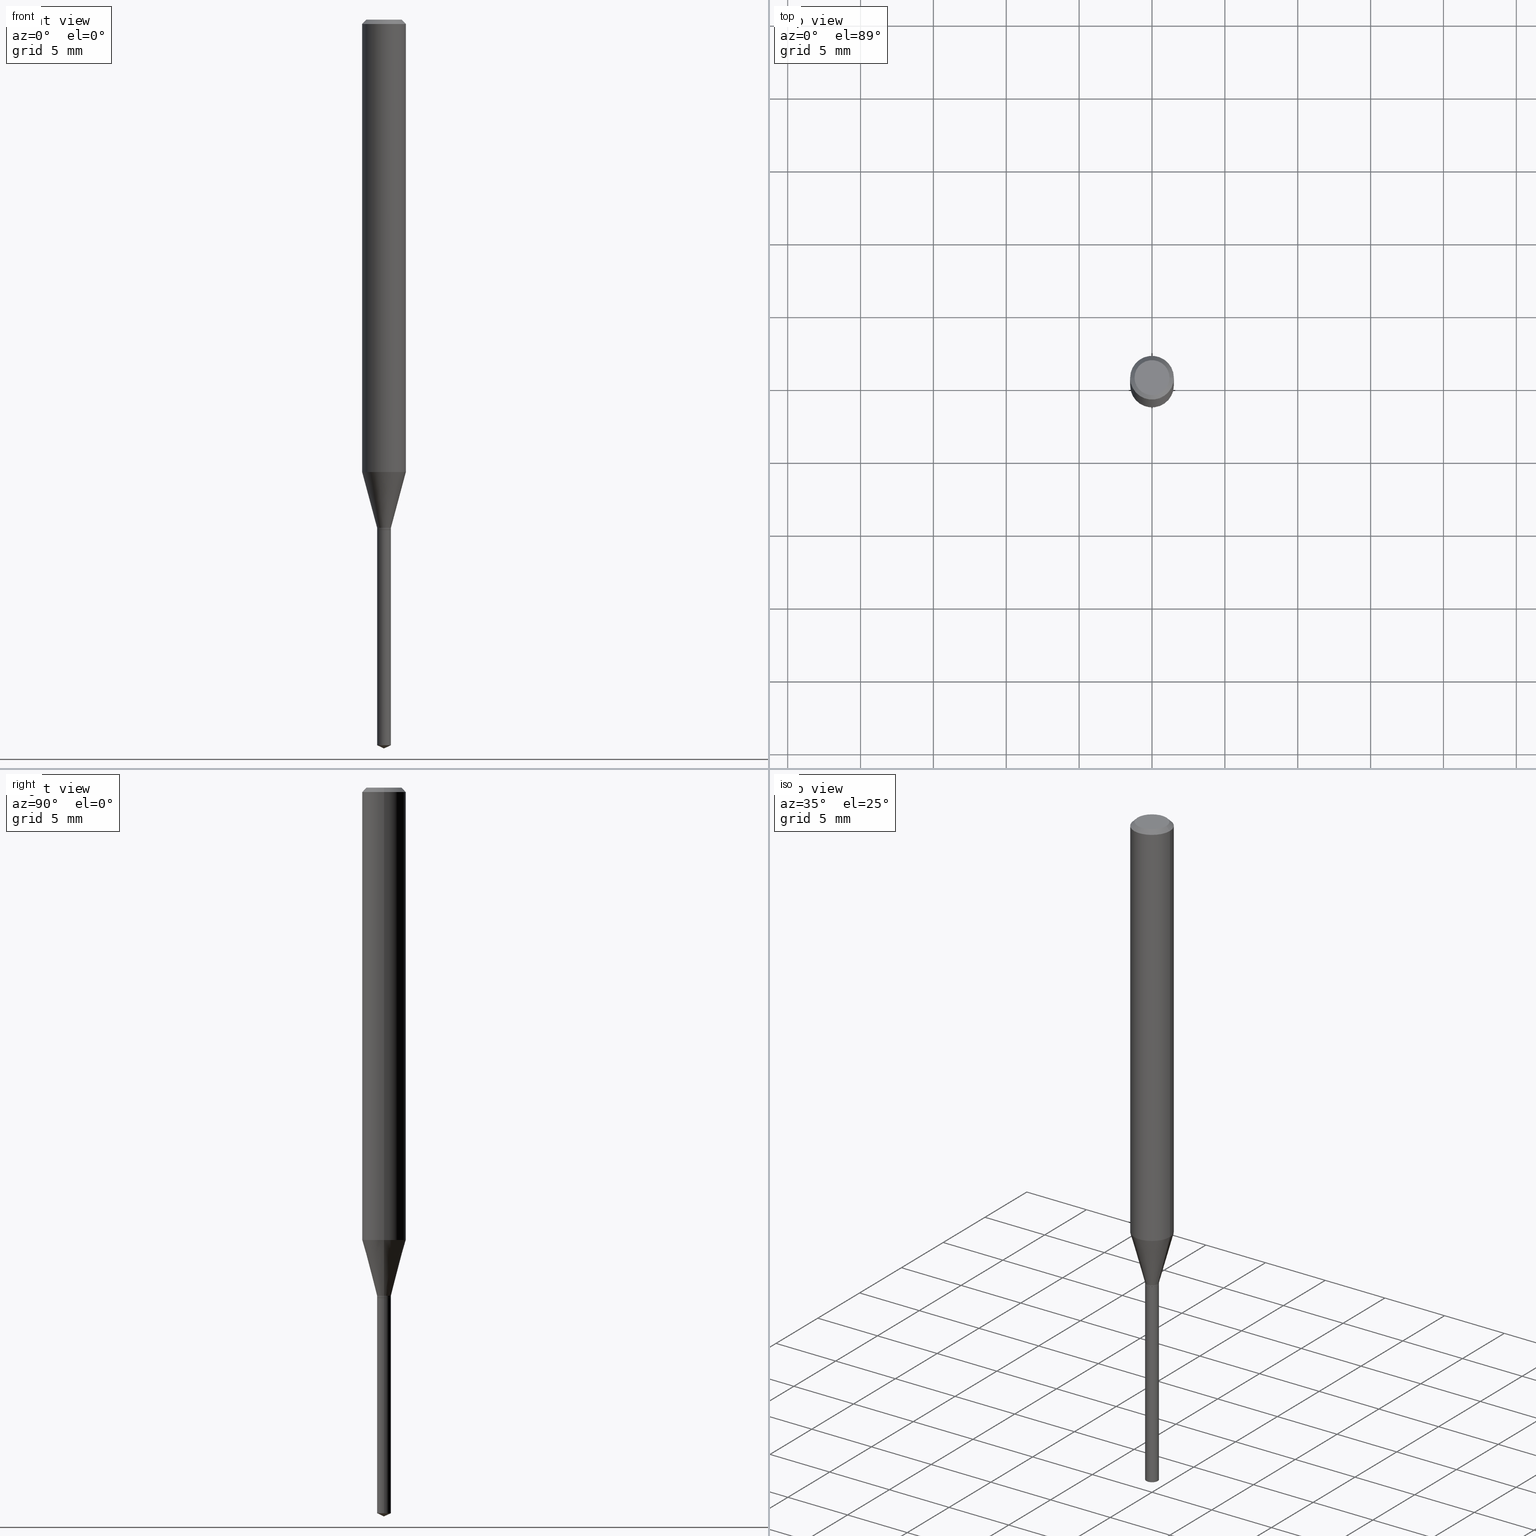
[diagram: canonical four-view strip — front | top / right | iso, engineering-drawing reading convention]
A machine part, canonical four-view strip (front | top / right | iso — engineering-drawing reading convention). The complete STEP part file that produces these views, byte-faithful:
ISO-10303-21;
HEADER;
FILE_DESCRIPTION (( 'STEP AP203' ),
    '1' );
FILE_NAME ('08324.STEP',
    '2024-04-24T14:20:11',
    ( '' ),
    ( '' ),
    'SwSTEP 2.0',
    'SolidWorks 2023',
    '' );
FILE_SCHEMA (( 'CONFIG_CONTROL_DESIGN' ));
ENDSEC;

DATA;
#1 =( NAMED_UNIT ( * ) PLANE_ANGLE_UNIT ( ) SI_UNIT ( $, .RADIAN. ) );
#2 = CIRCLE ( 'NONE', #483, 0.01870000000000003604 ) ;
#3 = LOCAL_TIME ( 10, 20, 11.00000000000000000, #231 ) ;
#4 = DIRECTION ( 'NONE',  ( -1.000000000000000000, 6.982962677686265922E-15, -4.876176775795935793E-29 ) ) ;
#5 = FACE_OUTER_BOUND ( 'NONE', #319, .T. ) ;
#6 = DIRECTION ( 'NONE',  ( 1.000000000000000000, -6.982962677686246989E-15, 0.000000000000000000 ) ) ;
#7 = ADVANCED_FACE ( 'NONE', ( #211 ), #423, .T. ) ;
#8 = ORIENTED_EDGE ( 'NONE', *, *, #476, .F. ) ;
#9 = CARTESIAN_POINT ( 'NONE',  ( -0.05905000000000000526, -1.734706470310346542E-15, -0.01181000000000007738 ) ) ;
#10 = PLANE ( 'NONE',  #338 ) ;
#11 = VERTEX_POINT ( 'NONE', #353 ) ;
#12 = LINE ( 'NONE', #169, #199 ) ;
#13 = AXIS2_PLACEMENT_3D ( 'NONE', #19, #458, #127 ) ;
#14 = AXIS2_PLACEMENT_3D ( 'NONE', #136, #23, #431 ) ;
#15 = CARTESIAN_POINT ( 'NONE',  ( 0.01870000000000003604, -4.941493538864706006E-15, -1.377900000000000569 ) ) ;
#16 = AXIS2_PLACEMENT_3D ( 'NONE', #273, #459, #270 ) ;
#17 = VERTEX_POINT ( 'NONE', #203 ) ;
#18 = EDGE_CURVE ( 'NONE', #92, #303, #12, .T. ) ;
#19 = CARTESIAN_POINT ( 'NONE',  ( 3.370834202445593086E-29, -4.812657877461392732E-15, -1.378400000000000292 ) ) ;
#20 = DATE_AND_TIME ( #58, #425 ) ;
#21 = ORIENTED_EDGE ( 'NONE', *, *, #222, .T. ) ;
#22 = CARTESIAN_POINT ( 'NONE',  ( -0.04724000000000000421, 3.504923541997677355E-16, -3.380025165670481712E-19 ) ) ;
#23 = DIRECTION ( 'NONE',  ( -2.445468806185136597E-29, 3.491481338843145583E-15, 1.000000000000000000 ) ) ;
#24 = VERTEX_POINT ( 'NONE', #272 ) ;
#25 = DIRECTION ( 'NONE',  ( -2.445468806185136597E-29, 3.491481338843145583E-15, 1.000000000000000000 ) ) ;
#26 = APPROVAL_DATE_TIME ( #20, #117 ) ;
#27 = CIRCLE ( 'NONE', #287, 0.01870000000000000134 ) ;
#28 = AXIS2_PLACEMENT_3D ( 'NONE', #43, #339, #488 ) ;
#29 = ORIENTED_EDGE ( 'NONE', *, *, #103, .F. ) ;
#30 = ADVANCED_FACE ( 'NONE', ( #317 ), #314, .T. ) ;
#31 = LINE ( 'NONE', #38, #74 ) ;
#32 = DIRECTION ( 'NONE',  ( -2.445468806185136597E-29, 3.491481338843145583E-15, 1.000000000000000000 ) ) ;
#33 = ORIENTED_EDGE ( 'NONE', *, *, #254, .T. ) ;
#34 = DIRECTION ( 'NONE',  ( -2.445468806185136597E-29, 3.491481338843145583E-15, 1.000000000000000000 ) ) ;
#35 = CONICAL_SURFACE ( 'NONE', #253, 0.01820000000000000090, 0.7853981633978559529 ) ;
#36 = AXIS2_PLACEMENT_3D ( 'NONE', #449, #413, #377 ) ;
#37 = EDGE_CURVE ( 'NONE', #262, #469, #430, .T. ) ;
#38 = CARTESIAN_POINT ( 'NONE',  ( 0.01820000000000000090, -4.939747798195282136E-15, -1.378400000000000292 ) ) ;
#39 = CARTESIAN_POINT ( 'NONE',  ( -0.01869999999999999787, -6.711409710695447924E-15, -1.960280046792501452 ) ) ;
#40 = SECURITY_CLASSIFICATION ( '', '', #348 ) ;
#41 = ORIENTED_EDGE ( 'NONE', *, *, #235, .F. ) ;
#42 = DATE_TIME_ROLE ( 'classification_date' ) ;
#43 = CARTESIAN_POINT ( 'NONE',  ( 3.357139577130955167E-29, -4.793105581963869525E-15, -1.372799999999999798 ) ) ;
#44 = CARTESIAN_POINT ( 'NONE',  ( 4.815128079378533515E-29, -6.874726756182153211E-15, -1.968999999999999861 ) ) ;
#45 = DIRECTION ( 'NONE',  ( -2.445468806185136597E-29, 3.491481338843145583E-15, 1.000000000000000000 ) ) ;
#46 = CIRCLE ( 'NONE', #325, 0.04724000000000000421 ) ;
#47 = AXIS2_PLACEMENT_3D ( 'NONE', #428, #358, #354 ) ;
#48 = ADVANCED_FACE ( 'NONE', ( #466 ), #271, .T. ) ;
#49 = CARTESIAN_POINT ( 'NONE',  ( 2.888098660104665518E-31, -4.123439461173782112E-17, -0.01181000000000007738 ) ) ;
#50 = DIRECTION ( 'NONE',  ( 1.000000000000000000, -6.982962677686267499E-15, 0.000000000000000000 ) ) ;
#51 = CARTESIAN_POINT ( 'NONE',  ( 0.01870000000000003604, -4.923686984036602725E-15, -1.372799999999999798 ) ) ;
#52 = FACE_OUTER_BOUND ( 'NONE', #464, .T. ) ;
#53 = DIRECTION ( 'NONE',  ( 1.000000000000000000, -6.982962677686266711E-15, 4.876176775795936353E-29 ) ) ;
#54 = CARTESIAN_POINT ( 'NONE',  ( 0.05905000000000007465, -4.123439461173745750E-16, 2.879382386107504074E-30 ) ) ;
#55 = AXIS2_PLACEMENT_3D ( 'NONE', #396, #436, #64 ) ;
#56 = VECTOR ( 'NONE', #371, 39.37007874015748143 ) ;
#57 = CARTESIAN_POINT ( 'NONE',  ( 3.370834202445593086E-29, -4.812657877461392732E-15, -1.378400000000000292 ) ) ;
#58 = CALENDAR_DATE ( 2024, 24, 4 ) ;
#59 = DIRECTION ( 'NONE',  ( -2.445468806185136597E-29, 3.491481338843145583E-15, 1.000000000000000000 ) ) ;
#60 = CARTESIAN_POINT ( 'NONE',  ( 0.000000000000000000, 0.000000000000000000, 0.000000000000000000 ) ) ;
#61 = ORIENTED_EDGE ( 'NONE', *, *, #282, .F. ) ;
#62 = APPROVAL_ROLE ( '' ) ;
#63 = ORIENTED_EDGE ( 'NONE', *, *, #103, .T. ) ;
#64 = DIRECTION ( 'NONE',  ( 1.000000000000000000, -6.982962677686261977E-15, 0.000000000000000000 ) ) ;
#65 = ADVANCED_FACE ( 'NONE', ( #356 ), #35, .T. ) ;
#66 = AXIS2_PLACEMENT_3D ( 'NONE', #126, #241, #124 ) ;
#67 = ORGANIZATION ( 'UNSPECIFIED', 'UNSPECIFIED', '' ) ;
#68 = ORIENTED_EDGE ( 'NONE', *, *, #480, .T. ) ;
#69 = APPROVAL ( #441, 'UNSPECIFIED' ) ;
#70 = EDGE_LOOP ( 'NONE', ( #118, #193, #41, #165 ) ) ;
#71 = LINE ( 'NONE', #252, #56 ) ;
#72 = EDGE_CURVE ( 'NONE', #73, #17, #122, .T. ) ;
#73 = VERTEX_POINT ( 'NONE', #460 ) ;
#74 = VECTOR ( 'NONE', #361, 39.37007874015748143 ) ;
#75 = AXIS2_PLACEMENT_3D ( 'NONE', #189, #83, #336 ) ;
#76 = EDGE_LOOP ( 'NONE', ( #155, #279 ) ) ;
#77 = VERTEX_POINT ( 'NONE', #9 ) ;
#78 = COORDINATED_UNIVERSAL_TIME_OFFSET ( 5, 0, .BEHIND. ) ;
#79 = ADVANCED_FACE ( 'NONE', ( #52 ), #208, .F. ) ;
#80 = APPROVAL_STATUS ( 'not_yet_approved' ) ;
#81 = APPROVAL_PERSON_ORGANIZATION ( #265, #117, #62 ) ;
#82 = ORIENTED_EDGE ( 'NONE', *, *, #18, .F. ) ;
#83 = DIRECTION ( 'NONE',  ( -2.445468806185136597E-29, 3.491481338843145583E-15, 1.000000000000000000 ) ) ;
#84 = DIRECTION ( 'NONE',  ( -2.445468806185136597E-29, 3.491481338843145583E-15, 1.000000000000000000 ) ) ;
#85 = CARTESIAN_POINT ( 'NONE',  ( 0.01870000000000000134, -4.943239279534125932E-15, -1.378400000000000292 ) ) ;
#86 = ADVANCED_FACE ( 'NONE', ( #239 ), #420, .T. ) ;
#87 = DIRECTION ( 'NONE',  ( 2.438088387897960049E-29, -3.491481338843145188E-15, -1.000000000000000000 ) ) ;
#88 = ORIENTED_EDGE ( 'NONE', *, *, #485, .F. ) ;
#89 = AXIS2_PLACEMENT_3D ( 'NONE', #170, #344, #318 ) ;
#90 = CARTESIAN_POINT ( 'NONE',  ( 0.05905000000000000526, -4.535783407291119586E-16, -0.01181000000000007738 ) ) ;
#91 = MECHANICAL_CONTEXT ( 'NONE', #246, 'mechanical' ) ;
#92 = VERTEX_POINT ( 'NONE', #280 ) ;
#93 = DIRECTION ( 'NONE',  ( -2.445468806185136597E-29, 3.491481338843145583E-15, 1.000000000000000000 ) ) ;
#94 = ADVANCED_FACE ( 'NONE', ( #427 ), #230, .T. ) ;
#95 = DIRECTION ( 'NONE',  ( 1.000000000000000000, -6.982962677686272233E-15, 0.000000000000000000 ) ) ;
#96 = CARTESIAN_POINT ( 'NONE',  ( 3.370834202445593086E-29, -4.812657877461392732E-15, -1.378400000000000292 ) ) ;
#97 = FACE_OUTER_BOUND ( 'NONE', #380, .T. ) ;
#98 = ORIENTED_EDGE ( 'NONE', *, *, #485, .T. ) ;
#99 = DIRECTION ( 'NONE',  ( -2.445468806185136597E-29, 3.491481338843145583E-15, 1.000000000000000000 ) ) ;
#100 = CIRCLE ( 'NONE', #89, 0.01820000000000000090 ) ;
#101 = DIRECTION ( 'NONE',  ( -2.445468806185136597E-29, 3.491481338843145583E-15, 1.000000000000000000 ) ) ;
#102 = ORIENTED_EDGE ( 'NONE', *, *, #235, .T. ) ;
#103 = EDGE_CURVE ( 'NONE', #303, #195, #187, .T. ) ;
#104 = CARTESIAN_POINT ( 'NONE',  ( 0.05905000000000000526, -4.463468013801467941E-16, -0.01181000000000007738 ) ) ;
#105 = CARTESIAN_POINT ( 'NONE',  ( 8.265746106709734507E-48, -1.180129479067563789E-33, -3.380025165646692144E-19 ) ) ;
#106 = DIRECTION ( 'NONE',  ( -2.438088387897960049E-29, 3.491481338843145188E-15, 1.000000000000000000 ) ) ;
#107 = ORIENTED_EDGE ( 'NONE', *, *, #391, .T. ) ;
#108 = DIRECTION ( 'NONE',  ( -2.445468806185136597E-29, 3.491481338843145583E-15, 1.000000000000000000 ) ) ;
#109 = DIRECTION ( 'NONE',  ( -2.445468806185136597E-29, 3.491481338843145583E-15, 1.000000000000000000 ) ) ;
#110 = DATE_AND_TIME ( #151, #403 ) ;
#111 = EDGE_CURVE ( 'NONE', #469, #73, #385, .T. ) ;
#112 = APPROVAL ( #119, 'UNSPECIFIED' ) ;
#113 = AXIS2_PLACEMENT_3D ( 'NONE', #57, #101, #139 ) ;
#114 = CIRCLE ( 'NONE', #28, 0.01870000000000003604 ) ;
#115 = VERTEX_POINT ( 'NONE', #342 ) ;
#116 = DATE_TIME_ROLE ( 'creation_date' ) ;
#117 = APPROVAL ( #80, 'UNSPECIFIED' ) ;
#118 = ORIENTED_EDGE ( 'NONE', *, *, #476, .T. ) ;
#119 = APPROVAL_STATUS ( 'not_yet_approved' ) ;
#120 = APPLICATION_PROTOCOL_DEFINITION ( 'international standard', 'config_control_design', 1994, #334 ) ;
#121 = ORIENTED_EDGE ( 'NONE', *, *, #142, .T. ) ;
#122 = CIRCLE ( 'NONE', #227, 0.01870000000000000134 ) ;
#123 = CONICAL_SURFACE ( 'NONE', #75, 0.01820000000000000090, 0.7853981633978559529 ) ;
#124 = DIRECTION ( 'NONE',  ( 1.000000000000000000, -6.982962677686266711E-15, 4.876176775795936353E-29 ) ) ;
#125 = EDGE_CURVE ( 'NONE', #77, #133, #294, .T. ) ;
#126 = CARTESIAN_POINT ( 'NONE',  ( 0.000000000000000000, 0.000000000000000000, 0.000000000000000000 ) ) ;
#127 = DIRECTION ( 'NONE',  ( 1.000000000000000000, -6.982962677686274599E-15, 0.000000000000000000 ) ) ;
#128 = ORIENTED_EDGE ( 'NONE', *, *, #282, .T. ) ;
#129 = VECTOR ( 'NONE', #285, 39.37007874015747433 ) ;
#130 = APPROVAL_PERSON_ORGANIZATION ( #263, #69, #185 ) ;
#131 = DIRECTION ( 'NONE',  ( -2.445468806185136597E-29, 3.491481338843145583E-15, 1.000000000000000000 ) ) ;
#132 = DIRECTION ( 'NONE',  ( -2.445468806185136597E-29, 3.491481338843145583E-15, 1.000000000000000000 ) ) ;
#133 = VERTEX_POINT ( 'NONE', #90 ) ;
#134 = EDGE_CURVE ( 'NONE', #133, #77, #161, .T. ) ;
#135 = CARTESIAN_POINT ( 'NONE',  ( 4.132873053354867254E-48, -5.900647395337818946E-34, -1.690012582823346072E-19 ) ) ;
#136 = CARTESIAN_POINT ( 'NONE',  ( -9.146317137672921654E-28, 1.305851684738629534E-13, 37.40107874015748024 ) ) ;
#137 = COORDINATED_UNIVERSAL_TIME_OFFSET ( 5, 0, .BEHIND. ) ;
#138 = ORIENTED_EDGE ( 'NONE', *, *, #37, .T. ) ;
#139 = DIRECTION ( 'NONE',  ( 1.000000000000000000, -6.982962677686246989E-15, 0.000000000000000000 ) ) ;
#140 = CIRCLE ( 'NONE', #408, 0.04724000000000000421 ) ;
#141 = APPROVAL_PERSON_ORGANIZATION ( #160, #112, #455 ) ;
#142 = EDGE_CURVE ( 'NONE', #418, #195, #31, .T. ) ;
#143 = ORIENTED_EDGE ( 'NONE', *, *, #304, .F. ) ;
#144 = FACE_OUTER_BOUND ( 'NONE', #357, .T. ) ;
#145 = FACE_OUTER_BOUND ( 'NONE', #274, .T. ) ;
#146 = LINE ( 'NONE', #484, #402 ) ;
#147 = ORIENTED_EDGE ( 'NONE', *, *, #134, .T. ) ;
#148 = PRODUCT_RELATED_PRODUCT_CATEGORY ( 'detail', '', ( #372 ) ) ;
#149 = EDGE_CURVE ( 'NONE', #24, #133, #247, .T. ) ;
#150 = AXIS2_PLACEMENT_3D ( 'NONE', #321, #106, #331 ) ;
#151 = CALENDAR_DATE ( 2024, 24, 4 ) ;
#152 = LOCAL_TIME ( 10, 20, 11.00000000000000000, #335 ) ;
#153 = MANIFOLD_SOLID_BREP ( 'Body-Move/Copy2[2]', #337 ) ;
#154 = VERTEX_POINT ( 'NONE', #249 ) ;
#155 = ORIENTED_EDGE ( 'NONE', *, *, #254, .F. ) ;
#156 = ADVANCED_FACE ( 'NONE', ( #400 ), #182, .F. ) ;
#157 = ORIENTED_EDGE ( 'NONE', *, *, #159, .F. ) ;
#158 = DATE_AND_TIME ( #463, #192 ) ;
#159 = EDGE_CURVE ( 'NONE', #154, #11, #2, .T. ) ;
#160 = PERSON_AND_ORGANIZATION ( #474, #67 ) ;
#161 = CIRCLE ( 'NONE', #355, 0.05905000000000000526 ) ;
#162 = CARTESIAN_POINT ( 'NONE',  ( 3.357139577130955167E-29, -4.793105581963869525E-15, -1.372799999999999798 ) ) ;
#163 = DATE_AND_TIME ( #381, #3 ) ;
#164 = DIRECTION ( 'NONE',  ( 1.000000000000000000, -6.982962677686274599E-15, 0.000000000000000000 ) ) ;
#165 = ORIENTED_EDGE ( 'NONE', *, *, #222, .F. ) ;
#166 = DIRECTION ( 'NONE',  ( 1.000000000000000000, -6.982962677686274599E-15, 0.000000000000000000 ) ) ;
#167 = ORIENTED_EDGE ( 'NONE', *, *, #465, .T. ) ;
#168 = ADVANCED_FACE ( 'NONE', ( #144 ), #232, .T. ) ;
#169 = CARTESIAN_POINT ( 'NONE',  ( -0.01820000000000000090, -4.683339099553054541E-15, -1.378400000000000292 ) ) ;
#170 = CARTESIAN_POINT ( 'NONE',  ( 3.370834202445593086E-29, -4.812657877461392732E-15, -1.378400000000000292 ) ) ;
#171 = DIRECTION ( 'NONE',  ( -0.7071067811868357866, 7.493145998871395457E-15, 0.7071067811862592478 ) ) ;
#172 = ORIENTED_EDGE ( 'NONE', *, *, #242, .T. ) ;
#173 = DIRECTION ( 'NONE',  ( -0.2588190451025213501, 5.211531920934551042E-15, 0.9659258262890682012 ) ) ;
#174 = CARTESIAN_POINT ( 'NONE',  ( -0.05905000000000007465, 4.195754854663396902E-16, -2.904631170795525395E-30 ) ) ;
#175 = VERTEX_POINT ( 'NONE', #22 ) ;
#176 = DIRECTION ( 'NONE',  ( 1.000000000000000000, -6.982962677686274599E-15, 0.000000000000000000 ) ) ;
#177 = AXIS2_PLACEMENT_3D ( 'NONE', #179, #132, #198 ) ;
#178 = AXIS2_PLACEMENT_3D ( 'NONE', #397, #59, #422 ) ;
#179 = CARTESIAN_POINT ( 'NONE',  ( 3.370834202445593086E-29, -4.812657877461392732E-15, -1.378400000000000292 ) ) ;
#180 = APPROVAL_DATE_TIME ( #110, #69 ) ;
#181 = ADVANCED_FACE ( 'NONE', ( #217 ), #366, .T. ) ;
#182 = PLANE ( 'NONE',  #150 ) ;
#183 = ORIENTED_EDGE ( 'NONE', *, *, #149, .T. ) ;
#184 = CARTESIAN_POINT ( 'NONE',  ( -0.05905000000000014404, -3.847754031475296427E-15, -1.222211749914595691 ) ) ;
#185 = APPROVAL_ROLE ( '' ) ;
#186 = CC_DESIGN_PERSON_AND_ORGANIZATION_ASSIGNMENT ( #298, #257, ( #315 ) ) ;
#187 = CIRCLE ( 'NONE', #301, 0.01870000000000003604 ) ;
#188 = CARTESIAN_POINT ( 'NONE',  ( -0.01870000000000003604, 1.328714915871389908E-16, -9.198408618776690967E-31 ) ) ;
#189 = CARTESIAN_POINT ( 'NONE',  ( 3.370834202445593086E-29, -4.812657877461392732E-15, -1.378400000000000292 ) ) ;
#190 = ORIENTED_EDGE ( 'NONE', *, *, #72, .T. ) ;
#191 = ORIENTED_EDGE ( 'NONE', *, *, #159, .T. ) ;
#192 = LOCAL_TIME ( 10, 20, 11.00000000000000000, #78 ) ;
#193 = ORIENTED_EDGE ( 'NONE', *, *, #383, .T. ) ;
#194 = DIRECTION ( 'NONE',  ( 1.000000000000000000, -6.982962677686261977E-15, 0.000000000000000000 ) ) ;
#195 = VERTEX_POINT ( 'NONE', #15 ) ;
#196 =( NAMED_UNIT ( * ) SI_UNIT ( $, .STERADIAN. ) SOLID_ANGLE_UNIT ( ) );
#197 = DIRECTION ( 'NONE',  ( -0.9063077870366507138, 7.915267918739014631E-15, 0.4226182617406978315 ) ) ;
#198 = DIRECTION ( 'NONE',  ( 1.000000000000000000, -6.982962677686274599E-15, 0.000000000000000000 ) ) ;
#199 = VECTOR ( 'NONE', #171, 39.37007874015748143 ) ;
#200 = CC_DESIGN_SECURITY_CLASSIFICATION ( #40, ( #315 ) ) ;
#201 = DIRECTION ( 'NONE',  ( -2.445468806185136597E-29, 3.491481338843145583E-15, 1.000000000000000000 ) ) ;
#202 = ORIENTED_EDGE ( 'NONE', *, *, #299, .T. ) ;
#203 = CARTESIAN_POINT ( 'NONE',  ( 0.01870000000000000134, -4.943239279534125932E-15, -1.378400000000000292 ) ) ;
#204 = CARTESIAN_POINT ( 'NONE',  ( 3.370834202445593086E-29, -4.812657877461392732E-15, -1.378400000000000292 ) ) ;
#205 = CARTESIAN_POINT ( 'NONE',  ( 2.988880708969093313E-29, -4.267329516941636708E-15, -1.222211749914595691 ) ) ;
#206 = PERSON_AND_ORGANIZATION ( #474, #67 ) ;
#207 = PRODUCT_DEFINITION ( 'UNKNOWN', '', #315, #438 ) ;
#208 = PLANE ( 'NONE',  #244 ) ;
#209 = ORIENTED_EDGE ( 'NONE', *, *, #299, .F. ) ;
#210 = VECTOR ( 'NONE', #444, 39.37007874015748143 ) ;
#211 = FACE_OUTER_BOUND ( 'NONE', #70, .T. ) ;
#212 = EDGE_CURVE ( 'NONE', #195, #11, #313, .T. ) ;
#213 = FACE_OUTER_BOUND ( 'NONE', #289, .T. ) ;
#214 = CARTESIAN_POINT ( 'NONE',  ( -9.146317137672921654E-28, 1.305851684738629534E-13, 37.40107874015748024 ) ) ;
#215 = DIRECTION ( 'NONE',  ( 1.000000000000000000, -6.982962677686274599E-15, 0.000000000000000000 ) ) ;
#216 = ORIENTED_EDGE ( 'NONE', *, *, #405, .F. ) ;
#217 = FACE_OUTER_BOUND ( 'NONE', #300, .T. ) ;
#218 = AXIS2_PLACEMENT_3D ( 'NONE', #49, #462, #421 ) ;
#219 = VECTOR ( 'NONE', #362, 39.37007874015748143 ) ;
#220 = DATE_AND_TIME ( #302, #152 ) ;
#221 = ORIENTED_EDGE ( 'NONE', *, *, #125, .T. ) ;
#222 = EDGE_CURVE ( 'NONE', #11, #115, #238, .T. ) ;
#223 = EDGE_LOOP ( 'NONE', ( #258, #404, #202, #221 ) ) ;
#224 = ORIENTED_EDGE ( 'NONE', *, *, #304, .T. ) ;
#225 = PERSON_AND_ORGANIZATION_ROLE ( 'classification_officer' ) ;
#226 = ORIENTED_EDGE ( 'NONE', *, *, #465, .F. ) ;
#227 = AXIS2_PLACEMENT_3D ( 'NONE', #392, #93, #164 ) ;
#228 =( GEOMETRIC_REPRESENTATION_CONTEXT ( 3 ) GLOBAL_UNCERTAINTY_ASSIGNED_CONTEXT ( ( #490 ) ) GLOBAL_UNIT_ASSIGNED_CONTEXT ( ( #267, #1, #196 ) ) REPRESENTATION_CONTEXT ( 'NONE', 'WORKASPACE' ) );
#229 = CARTESIAN_POINT ( 'NONE',  ( -0.01870000000000000134, -4.679786385874254431E-15, -1.378400000000000292 ) ) ;
#230 = CYLINDRICAL_SURFACE ( 'NONE', #260, 0.05905000000000007465 ) ;
#231 = COORDINATED_UNIVERSAL_TIME_OFFSET ( 5, 0, .BEHIND. ) ;
#232 = CONICAL_SURFACE ( 'NONE', #55, 0.01870000000000003604, 0.2617993877991500740 ) ;
#233 = ORIENTED_EDGE ( 'NONE', *, *, #376, .T. ) ;
#234 = AXIS2_PLACEMENT_3D ( 'NONE', #352, #99, #166 ) ;
#235 = EDGE_CURVE ( 'NONE', #115, #261, #305, .T. ) ;
#236 = CARTESIAN_POINT ( 'NONE',  ( 2.888098660104665518E-31, -4.123439461173782112E-17, -0.01181000000000007738 ) ) ;
#237 = CARTESIAN_POINT ( 'NONE',  ( 3.370834202445593086E-29, -4.812657877461392732E-15, -1.378400000000000292 ) ) ;
#238 = LINE ( 'NONE', #51, #129 ) ;
#239 = FACE_OUTER_BOUND ( 'NONE', #439, .T. ) ;
#240 = CYLINDRICAL_SURFACE ( 'NONE', #178, 0.01870000000000003604 ) ;
#241 = DIRECTION ( 'NONE',  ( -2.445468806185136597E-29, 3.491481338843145583E-15, 1.000000000000000000 ) ) ;
#242 = EDGE_CURVE ( 'NONE', #92, #418, #100, .T. ) ;
#243 = ORIENTED_EDGE ( 'NONE', *, *, #212, .T. ) ;
#244 = AXIS2_PLACEMENT_3D ( 'NONE', #135, #87, #4 ) ;
#245 = VECTOR ( 'NONE', #382, 39.37007874015748143 ) ;
#246 = APPLICATION_CONTEXT ( 'configuration controlled 3d designs of mechanical parts and assemblies' ) ;
#247 = LINE ( 'NONE', #104, #210 ) ;
#248 = DIRECTION ( 'NONE',  ( -2.445468806185136597E-29, 3.491481338843145583E-15, 1.000000000000000000 ) ) ;
#249 = CARTESIAN_POINT ( 'NONE',  ( -0.01870000000000003604, -4.669137367790782076E-15, -1.372799999999999798 ) ) ;
#250 = LINE ( 'NONE', #188, #447 ) ;
#251 = ORIENTED_EDGE ( 'NONE', *, *, #212, .F. ) ;
#252 = CARTESIAN_POINT ( 'NONE',  ( 4.815128079378533515E-29, -6.874726756182153211E-15, -1.968999999999999861 ) ) ;
#253 = AXIS2_PLACEMENT_3D ( 'NONE', #96, #269, #6 ) ;
#254 = EDGE_CURVE ( 'NONE', #418, #92, #266, .T. ) ;
#255 = DIRECTION ( 'NONE',  ( -2.445468806185136877E-29, 3.491481338843145188E-15, 1.000000000000000000 ) ) ;
#256 = CARTESIAN_POINT ( 'NONE',  ( 8.265746106709734507E-48, -1.180129479067563789E-33, -3.380025165646692144E-19 ) ) ;
#257 = PERSON_AND_ORGANIZATION_ROLE ( 'creator' ) ;
#258 = ORIENTED_EDGE ( 'NONE', *, *, #149, .F. ) ;
#259 = ADVANCED_FACE ( 'NONE', ( #5 ), #364, .T. ) ;
#260 = AXIS2_PLACEMENT_3D ( 'NONE', #312, #131, #53 ) ;
#261 = VERTEX_POINT ( 'NONE', #184 ) ;
#262 = VERTEX_POINT ( 'NONE', #482 ) ;
#263 = PERSON_AND_ORGANIZATION ( #474, #67 ) ;
#264 = ORIENTED_EDGE ( 'NONE', *, *, #72, .F. ) ;
#265 = PERSON_AND_ORGANIZATION ( #474, #67 ) ;
#266 = CIRCLE ( 'NONE', #113, 0.01820000000000000090 ) ;
#267 =( CONVERSION_BASED_UNIT ( 'INCH', #489 ) LENGTH_UNIT ( ) NAMED_UNIT ( #291 ) );
#268 = VECTOR ( 'NONE', #173, 39.37007874015747433 ) ;
#269 = DIRECTION ( 'NONE',  ( -2.445468806185136597E-29, 3.491481338843145583E-15, 1.000000000000000000 ) ) ;
#270 = DIRECTION ( 'NONE',  ( 1.000000000000000000, 0.000000000000000000, 0.000000000000000000 ) ) ;
#271 = CYLINDRICAL_SURFACE ( 'NONE', #66, 0.05905000000000007465 ) ;
#272 = CARTESIAN_POINT ( 'NONE',  ( 0.04724000000000000421, -3.852183633974369838E-16, -3.380025165621689721E-19 ) ) ;
#273 = CARTESIAN_POINT ( 'NONE',  ( 0.000000000000000000, 0.000000000000000000, 0.000000000000000000 ) ) ;
#274 = EDGE_LOOP ( 'NONE', ( #310, #63, #243, #157 ) ) ;
#275 = CC_DESIGN_APPROVAL ( #117, ( #207 ) ) ;
#276 = CC_DESIGN_PERSON_AND_ORGANIZATION_ASSIGNMENT ( #415, #461, ( #315 ) ) ;
#277 = DIRECTION ( 'NONE',  ( 1.000000000000000000, -6.982962677686261977E-15, 0.000000000000000000 ) ) ;
#278 = DIRECTION ( 'NONE',  ( -1.000000000000000000, 6.982962677686265922E-15, -4.876176775795935793E-29 ) ) ;
#279 = ORIENTED_EDGE ( 'NONE', *, *, #242, .F. ) ;
#280 = CARTESIAN_POINT ( 'NONE',  ( -0.01820000000000000090, -4.680689872378944917E-15, -1.378400000000000292 ) ) ;
#281 = DIRECTION ( 'NONE',  ( 2.438088387897960049E-29, -3.491481338843145188E-15, -1.000000000000000000 ) ) ;
#282 = EDGE_CURVE ( 'NONE', #469, #370, #27, .T. ) ;
#283 = EDGE_LOOP ( 'NONE', ( #426, #138, #216 ) ) ;
#284 = DIRECTION ( 'NONE',  ( 1.000000000000000000, -6.982962677686261977E-15, 0.000000000000000000 ) ) ;
#285 = DIRECTION ( 'NONE',  ( 0.2588190451025213501, 1.565188264969621968E-15, 0.9659258262890682012 ) ) ;
#286 = PERSON_AND_ORGANIZATION ( #474, #67 ) ;
#287 = AXIS2_PLACEMENT_3D ( 'NONE', #330, #109, #215 ) ;
#288 = CARTESIAN_POINT ( 'NONE',  ( 0.01869999999999999787, -6.974862604355320214E-15, -1.960280046792501452 ) ) ;
#289 = EDGE_LOOP ( 'NONE', ( #360, #183, #147, #209 ) ) ;
#290 = CC_DESIGN_PERSON_AND_ORGANIZATION_ASSIGNMENT ( #206, #452, ( #372 ) ) ;
#291 = DIMENSIONAL_EXPONENTS ( 1.000000000000000000, 0.000000000000000000, 0.000000000000000000, 0.000000000000000000, 0.000000000000000000, 0.000000000000000000, 0.000000000000000000 ) ;
#292 = EDGE_LOOP ( 'NONE', ( #33, #332, #88, #340 ) ) ;
#293 = DIRECTION ( 'NONE',  ( 1.000000000000000000, -6.982962677686265922E-15, 4.876176775795935793E-29 ) ) ;
#294 = CIRCLE ( 'NONE', #218, 0.05905000000000000526 ) ;
#295 = EDGE_LOOP ( 'NONE', ( #143, #167, #233, #473 ) ) ;
#296 = CIRCLE ( 'NONE', #457, 0.01870000000000000134 ) ;
#297 = CARTESIAN_POINT ( 'NONE',  ( -0.01870000000000003604, -4.669137367790782076E-15, -1.377900000000000569 ) ) ;
#298 = PERSON_AND_ORGANIZATION ( #474, #67 ) ;
#299 = EDGE_CURVE ( 'NONE', #175, #77, #146, .T. ) ;
#300 = EDGE_LOOP ( 'NONE', ( #374, #412, #450, #448 ) ) ;
#301 = AXIS2_PLACEMENT_3D ( 'NONE', #419, #84, #277 ) ;
#302 = CALENDAR_DATE ( 2024, 24, 4 ) ;
#303 = VERTEX_POINT ( 'NONE', #297 ) ;
#304 = EDGE_CURVE ( 'NONE', #261, #77, #445, .T. ) ;
#305 = CIRCLE ( 'NONE', #486, 0.05905000000000014404 ) ;
#306 =( LENGTH_UNIT ( ) NAMED_UNIT ( * ) SI_UNIT ( $, .METRE. ) );
#307 = DIRECTION ( 'NONE',  ( 2.445468806185136597E-29, -3.491481338843145583E-15, -1.000000000000000000 ) ) ;
#308 = EDGE_CURVE ( 'NONE', #24, #175, #140, .T. ) ;
#309 = MANIFOLD_SOLID_BREP ( 'Body-Move/Copy2[1]', #324 ) ;
#310 = ORIENTED_EDGE ( 'NONE', *, *, #369, .F. ) ;
#311 = ORIENTED_EDGE ( 'NONE', *, *, #369, .T. ) ;
#312 = CARTESIAN_POINT ( 'NONE',  ( 0.000000000000000000, 0.000000000000000000, 0.000000000000000000 ) ) ;
#313 = LINE ( 'NONE', #389, #456 ) ;
#314 = CONICAL_SURFACE ( 'NONE', #378, 0.05905000000000000526, 0.7853981633974452814 ) ;
#315 = PRODUCT_DEFINITION_FORMATION_WITH_SPECIFIED_SOURCE ( 'ANY', '', #372, .NOT_KNOWN. ) ;
#316 = ADVANCED_BREP_SHAPE_REPRESENTATION ( '08324', ( #309, #153, #16 ), #228 ) ;
#317 = FACE_OUTER_BOUND ( 'NONE', #223, .T. ) ;
#318 = DIRECTION ( 'NONE',  ( 1.000000000000000000, -6.982962677686246989E-15, 0.000000000000000000 ) ) ;
#319 = EDGE_LOOP ( 'NONE', ( #98, #311, #8, #251 ) ) ;
#320 = CC_DESIGN_PERSON_AND_ORGANIZATION_ASSIGNMENT ( #286, #327, ( #207 ) ) ;
#321 = CARTESIAN_POINT ( 'NONE',  ( 3.370834202445593086E-29, -4.812657877461392732E-15, -1.378400000000000292 ) ) ;
#322 = CARTESIAN_POINT ( 'NONE',  ( 0.01820000000000000090, -4.939747798195282136E-15, -1.378400000000000292 ) ) ;
#323 = DIRECTION ( 'NONE',  ( -2.445468806185136597E-29, 3.491481338843145583E-15, 1.000000000000000000 ) ) ;
#324 = CLOSED_SHELL ( 'NONE', ( #181, #446, #363, #86, #399 ) ) ;
#325 = AXIS2_PLACEMENT_3D ( 'NONE', #105, #323, #406 ) ;
#326 = CARTESIAN_POINT ( 'NONE',  ( -0.01870000000000003604, -4.660234090376731224E-15, -1.372799999999999798 ) ) ;
#327 = PERSON_AND_ORGANIZATION_ROLE ( 'creator' ) ;
#328 = EDGE_CURVE ( 'NONE', #175, #24, #46, .T. ) ;
#329 = EDGE_LOOP ( 'NONE', ( #102, #224, #429, #411 ) ) ;
#330 = CARTESIAN_POINT ( 'NONE',  ( 4.793803705818202511E-29, -6.844281202282587014E-15, -1.960280046792501452 ) ) ;
#331 = DIRECTION ( 'NONE',  ( 1.000000000000000000, -6.982962677686265922E-15, 4.876176775795935793E-29 ) ) ;
#332 = ORIENTED_EDGE ( 'NONE', *, *, #18, .T. ) ;
#333 = CONICAL_SURFACE ( 'NONE', #14, 84.42940631927434936, 1.134464013796316006 ) ;
#334 = APPLICATION_CONTEXT ( 'configuration controlled 3d designs of mechanical parts and assemblies' ) ;
#335 = COORDINATED_UNIVERSAL_TIME_OFFSET ( 5, 0, .BEHIND. ) ;
#336 = DIRECTION ( 'NONE',  ( 1.000000000000000000, -6.982962677686246989E-15, 0.000000000000000000 ) ) ;
#337 = CLOSED_SHELL ( 'NONE', ( #65, #434, #48, #7, #259, #410, #168, #94, #30, #79, #156, #454 ) ) ;
#338 = AXIS2_PLACEMENT_3D ( 'NONE', #204, #281, #278 ) ;
#339 = DIRECTION ( 'NONE',  ( -2.445468806185136597E-29, 3.491481338843145583E-15, 1.000000000000000000 ) ) ;
#340 = ORIENTED_EDGE ( 'NONE', *, *, #142, .F. ) ;
#341 = EDGE_CURVE ( 'NONE', #262, #370, #71, .T. ) ;
#342 = CARTESIAN_POINT ( 'NONE',  ( 0.05905000000000014404, -4.679673463059010840E-15, -1.222211749914595691 ) ) ;
#343 = VECTOR ( 'NONE', #255, 39.37007874015748143 ) ;
#344 = DIRECTION ( 'NONE',  ( -2.445468806185136597E-29, 3.491481338843145583E-15, 1.000000000000000000 ) ) ;
#345 = APPLICATION_PROTOCOL_DEFINITION ( 'international standard', 'config_control_design', 1994, #246 ) ;
#346 = AXIS2_PLACEMENT_3D ( 'NONE', #424, #45, #194 ) ;
#347 = DIRECTION ( 'NONE',  ( -1.000000000000000000, 6.982962677686267499E-15, 0.000000000000000000 ) ) ;
#348 = SECURITY_CLASSIFICATION_LEVEL ( 'unclassified' ) ;
#349 = CC_DESIGN_PERSON_AND_ORGANIZATION_ASSIGNMENT ( #451, #225, ( #40 ) ) ;
#350 = ORIENTED_EDGE ( 'NONE', *, *, #111, .F. ) ;
#351 = DIRECTION ( 'NONE',  ( 1.000000000000000000, -6.982962677686261977E-15, 0.000000000000000000 ) ) ;
#352 = CARTESIAN_POINT ( 'NONE',  ( 4.793803705818202511E-29, -6.844281202282587014E-15, -1.960280046792501452 ) ) ;
#353 = CARTESIAN_POINT ( 'NONE',  ( 0.01870000000000003604, -4.923686984036602725E-15, -1.372799999999999798 ) ) ;
#354 = DIRECTION ( 'NONE',  ( -1.000000000000000000, 6.982962677686267499E-15, 0.000000000000000000 ) ) ;
#355 = AXIS2_PLACEMENT_3D ( 'NONE', #236, #388, #50 ) ;
#356 = FACE_OUTER_BOUND ( 'NONE', #292, .T. ) ;
#357 = EDGE_LOOP ( 'NONE', ( #395, #191, #21, #226 ) ) ;
#358 = DIRECTION ( 'NONE',  ( 2.445468806185136597E-29, -3.491481338843145583E-15, -1.000000000000000000 ) ) ;
#359 = DIRECTION ( 'NONE',  ( 1.000000000000000000, -6.982962677686266711E-15, 0.000000000000000000 ) ) ;
#360 = ORIENTED_EDGE ( 'NONE', *, *, #308, .F. ) ;
#361 = DIRECTION ( 'NONE',  ( 0.7071067811868357866, -2.468850131085276426E-15, 0.7071067811862592478 ) ) ;
#362 = DIRECTION ( 'NONE',  ( -2.445468806185136877E-29, 3.491481338843145188E-15, 1.000000000000000000 ) ) ;
#363 = ADVANCED_FACE ( 'NONE', ( #398 ), #387, .T. ) ;
#364 = CYLINDRICAL_SURFACE ( 'NONE', #467, 0.01870000000000003604 ) ;
#365 = AXIS2_PLACEMENT_3D ( 'NONE', #214, #34, #359 ) ;
#366 = CYLINDRICAL_SURFACE ( 'NONE', #177, 0.01870000000000000134 ) ;
#367 = COORDINATED_UNIVERSAL_TIME_OFFSET ( 5, 0, .BEHIND. ) ;
#368 = ORIENTED_EDGE ( 'NONE', *, *, #328, .T. ) ;
#369 = EDGE_CURVE ( 'NONE', #303, #154, #250, .T. ) ;
#370 = VERTEX_POINT ( 'NONE', #288 ) ;
#371 = DIRECTION ( 'NONE',  ( 0.9063077870366507138, -4.853149677051390623E-15, 0.4226182617406978315 ) ) ;
#372 = PRODUCT ( '08324', '08324', '', ( #91 ) ) ;
#373 = CIRCLE ( 'NONE', #234, 0.01870000000000000134 ) ;
#374 = ORIENTED_EDGE ( 'NONE', *, *, #405, .T. ) ;
#375 = SHAPE_DEFINITION_REPRESENTATION ( #401, #316 ) ;
#376 = EDGE_CURVE ( 'NONE', #115, #133, #435, .T. ) ;
#377 = DIRECTION ( 'NONE',  ( 1.000000000000000000, -6.982962677686272233E-15, 0.000000000000000000 ) ) ;
#378 = AXIS2_PLACEMENT_3D ( 'NONE', #390, #307, #347 ) ;
#379 = EDGE_LOOP ( 'NONE', ( #471, #407, #61 ) ) ;
#380 = EDGE_LOOP ( 'NONE', ( #82, #172, #121, #29 ) ) ;
#381 = CALENDAR_DATE ( 2024, 24, 4 ) ;
#382 = DIRECTION ( 'NONE',  ( -2.445468806185136877E-29, 3.491481338843145188E-15, 1.000000000000000000 ) ) ;
#383 = EDGE_CURVE ( 'NONE', #154, #261, #475, .T. ) ;
#384 = DIRECTION ( 'NONE',  ( -2.445468806185136877E-29, 3.491481338843145188E-15, 1.000000000000000000 ) ) ;
#385 = LINE ( 'NONE', #229, #416 ) ;
#386 = APPROVAL_DATE_TIME ( #158, #112 ) ;
#387 = CONICAL_SURFACE ( 'NONE', #365, 84.42940631927434936, 1.134464013796316006 ) ;
#388 = DIRECTION ( 'NONE',  ( -2.445468806185136597E-29, 3.491481338843145583E-15, 1.000000000000000000 ) ) ;
#389 = CARTESIAN_POINT ( 'NONE',  ( 0.01870000000000003604, -1.305814020727334220E-16, 9.118450570738417925E-31 ) ) ;
#390 = CARTESIAN_POINT ( 'NONE',  ( 2.888098660104665518E-31, -4.123439461173782112E-17, -0.01181000000000007738 ) ) ;
#391 = EDGE_CURVE ( 'NONE', #17, #73, #296, .T. ) ;
#392 = CARTESIAN_POINT ( 'NONE',  ( 3.370834202445593086E-29, -4.812657877461392732E-15, -1.378400000000000292 ) ) ;
#393 = DIRECTION ( 'NONE',  ( -2.445468806185136597E-29, 3.491481338843145583E-15, 1.000000000000000000 ) ) ;
#394 = CIRCLE ( 'NONE', #346, 0.01870000000000003604 ) ;
#395 = ORIENTED_EDGE ( 'NONE', *, *, #383, .F. ) ;
#396 = CARTESIAN_POINT ( 'NONE',  ( 3.357139577130955167E-29, -4.793105581963869525E-15, -1.372799999999999798 ) ) ;
#397 = CARTESIAN_POINT ( 'NONE',  ( 0.000000000000000000, 0.000000000000000000, 0.000000000000000000 ) ) ;
#398 = FACE_OUTER_BOUND ( 'NONE', #379, .T. ) ;
#399 = ADVANCED_FACE ( 'NONE', ( #478 ), #10, .F. ) ;
#400 = FACE_OUTER_BOUND ( 'NONE', #76, .T. ) ;
#401 = PRODUCT_DEFINITION_SHAPE ( 'NONE', 'NONE',  #207 ) ;
#402 = VECTOR ( 'NONE', #440, 39.37007874015748143 ) ;
#403 = LOCAL_TIME ( 10, 20, 11.00000000000000000, #367 ) ;
#404 = ORIENTED_EDGE ( 'NONE', *, *, #328, .F. ) ;
#405 = EDGE_CURVE ( 'NONE', #370, #469, #373, .T. ) ;
#406 = DIRECTION ( 'NONE',  ( 1.000000000000000000, -6.982962677686266711E-15, 4.876185090822587894E-29 ) ) ;
#407 = ORIENTED_EDGE ( 'NONE', *, *, #341, .T. ) ;
#408 = AXIS2_PLACEMENT_3D ( 'NONE', #256, #248, #437 ) ;
#409 = CC_DESIGN_APPROVAL ( #112, ( #40 ) ) ;
#410 = ADVANCED_FACE ( 'NONE', ( #145 ), #240, .T. ) ;
#411 = ORIENTED_EDGE ( 'NONE', *, *, #376, .F. ) ;
#412 = ORIENTED_EDGE ( 'NONE', *, *, #111, .T. ) ;
#413 = DIRECTION ( 'NONE',  ( -2.445468806185136597E-29, 3.491481338843145583E-15, 1.000000000000000000 ) ) ;
#414 = CC_DESIGN_DATE_AND_TIME_ASSIGNMENT ( #220, #116, ( #207 ) ) ;
#415 = PERSON_AND_ORGANIZATION ( #474, #67 ) ;
#416 = VECTOR ( 'NONE', #384, 39.37007874015748143 ) ;
#417 = CC_DESIGN_APPROVAL ( #69, ( #315 ) ) ;
#418 = VERTEX_POINT ( 'NONE', #322 ) ;
#419 = CARTESIAN_POINT ( 'NONE',  ( 3.369611468042500845E-29, -4.810912136791972806E-15, -1.377900000000000569 ) ) ;
#420 = CYLINDRICAL_SURFACE ( 'NONE', #13, 0.01870000000000000134 ) ;
#421 = DIRECTION ( 'NONE',  ( 1.000000000000000000, -6.982962677686267499E-15, 0.000000000000000000 ) ) ;
#422 = DIRECTION ( 'NONE',  ( 1.000000000000000000, -6.982962677686265922E-15, 4.876176775795935793E-29 ) ) ;
#423 = CONICAL_SURFACE ( 'NONE', #443, 0.01870000000000003604, 0.2617993877991500740 ) ;
#424 = CARTESIAN_POINT ( 'NONE',  ( 3.369611468042500845E-29, -4.810912136791972806E-15, -1.377900000000000569 ) ) ;
#425 = LOCAL_TIME ( 10, 20, 11.00000000000000000, #137 ) ;
#426 = ORIENTED_EDGE ( 'NONE', *, *, #341, .F. ) ;
#427 = FACE_OUTER_BOUND ( 'NONE', #295, .T. ) ;
#428 = CARTESIAN_POINT ( 'NONE',  ( 2.888098660104665518E-31, -4.123439461173782112E-17, -0.01181000000000007738 ) ) ;
#429 = ORIENTED_EDGE ( 'NONE', *, *, #134, .F. ) ;
#430 = LINE ( 'NONE', #44, #442 ) ;
#431 = DIRECTION ( 'NONE',  ( 1.000000000000000000, -6.982962677686266711E-15, 0.000000000000000000 ) ) ;
#432 = DIRECTION ( 'NONE',  ( -2.445468806185136877E-29, 3.491481338843145188E-15, 1.000000000000000000 ) ) ;
#433 = EDGE_LOOP ( 'NONE', ( #107, #190 ) ) ;
#434 = ADVANCED_FACE ( 'NONE', ( #213 ), #468, .T. ) ;
#435 = LINE ( 'NONE', #54, #219 ) ;
#436 = DIRECTION ( 'NONE',  ( -2.445468806185136597E-29, 3.491481338843145583E-15, 1.000000000000000000 ) ) ;
#437 = DIRECTION ( 'NONE',  ( 1.000000000000000000, -6.982962677686266711E-15, 4.876185090822587894E-29 ) ) ;
#438 = DESIGN_CONTEXT ( 'detailed design', #334, 'design' ) ;
#439 = EDGE_LOOP ( 'NONE', ( #350, #128, #68, #264 ) ) ;
#440 = DIRECTION ( 'NONE',  ( -0.7071067811865453523, 2.468850131082234184E-15, -0.7071067811865496822 ) ) ;
#441 = APPROVAL_STATUS ( 'not_yet_approved' ) ;
#442 = VECTOR ( 'NONE', #197, 39.37007874015748143 ) ;
#443 = AXIS2_PLACEMENT_3D ( 'NONE', #162, #201, #351 ) ;
#444 = DIRECTION ( 'NONE',  ( 0.7071067811865453523, -7.319954787623248157E-15, -0.7071067811865496822 ) ) ;
#445 = LINE ( 'NONE', #174, #343 ) ;
#446 = ADVANCED_FACE ( 'NONE', ( #472 ), #333, .T. ) ;
#447 = VECTOR ( 'NONE', #477, 39.37007874015748143 ) ;
#448 = ORIENTED_EDGE ( 'NONE', *, *, #480, .F. ) ;
#449 = CARTESIAN_POINT ( 'NONE',  ( 2.988880708969093313E-29, -4.267329516941636708E-15, -1.222211749914595691 ) ) ;
#450 = ORIENTED_EDGE ( 'NONE', *, *, #391, .F. ) ;
#451 = PERSON_AND_ORGANIZATION ( #474, #67 ) ;
#452 = PERSON_AND_ORGANIZATION_ROLE ( 'design_owner' ) ;
#453 = LINE ( 'NONE', #85, #245 ) ;
#454 = ADVANCED_FACE ( 'NONE', ( #97 ), #123, .T. ) ;
#455 = APPROVAL_ROLE ( '' ) ;
#456 = VECTOR ( 'NONE', #432, 39.37007874015748143 ) ;
#457 = AXIS2_PLACEMENT_3D ( 'NONE', #237, #25, #176 ) ;
#458 = DIRECTION ( 'NONE',  ( -2.445468806185136597E-29, 3.491481338843145583E-15, 1.000000000000000000 ) ) ;
#459 = DIRECTION ( 'NONE',  ( 0.000000000000000000, 0.000000000000000000, 1.000000000000000000 ) ) ;
#460 = CARTESIAN_POINT ( 'NONE',  ( -0.01870000000000000134, -5.695598048284850783E-15, -1.378400000000000292 ) ) ;
#461 = PERSON_AND_ORGANIZATION_ROLE ( 'design_supplier' ) ;
#462 = DIRECTION ( 'NONE',  ( -2.445468806185136597E-29, 3.491481338843145583E-15, 1.000000000000000000 ) ) ;
#463 = CALENDAR_DATE ( 2024, 24, 4 ) ;
#464 = EDGE_LOOP ( 'NONE', ( #368, #479 ) ) ;
#465 = EDGE_CURVE ( 'NONE', #261, #115, #487, .T. ) ;
#466 = FACE_OUTER_BOUND ( 'NONE', #329, .T. ) ;
#467 = AXIS2_PLACEMENT_3D ( 'NONE', #60, #32, #293 ) ;
#468 = CONICAL_SURFACE ( 'NONE', #47, 0.05905000000000000526, 0.7853981633974452814 ) ;
#469 = VERTEX_POINT ( 'NONE', #39 ) ;
#470 = CC_DESIGN_DATE_AND_TIME_ASSIGNMENT ( #163, #42, ( #40 ) ) ;
#471 = ORIENTED_EDGE ( 'NONE', *, *, #37, .F. ) ;
#472 = FACE_OUTER_BOUND ( 'NONE', #283, .T. ) ;
#473 = ORIENTED_EDGE ( 'NONE', *, *, #125, .F. ) ;
#474 = PERSON ( 'UNSPECIFIED', 'UNSPECIFIED', 'UNSPECIFIED', ('UNSPECIFIED'), ('UNSPECIFIED'), ('UNSPECIFIED') ) ;
#475 = LINE ( 'NONE', #326, #268 ) ;
#476 = EDGE_CURVE ( 'NONE', #11, #154, #114, .T. ) ;
#477 = DIRECTION ( 'NONE',  ( -2.445468806185136877E-29, 3.491481338843145188E-15, 1.000000000000000000 ) ) ;
#478 = FACE_OUTER_BOUND ( 'NONE', #433, .T. ) ;
#479 = ORIENTED_EDGE ( 'NONE', *, *, #308, .T. ) ;
#480 = EDGE_CURVE ( 'NONE', #370, #17, #453, .T. ) ;
#481 = CARTESIAN_POINT ( 'NONE',  ( 3.357139577130955167E-29, -4.793105581963869525E-15, -1.372799999999999798 ) ) ;
#482 = CARTESIAN_POINT ( 'NONE',  ( 4.815128079378533515E-29, -6.874726756182153211E-15, -1.968999999999999861 ) ) ;
#483 = AXIS2_PLACEMENT_3D ( 'NONE', #481, #108, #284 ) ;
#484 = CARTESIAN_POINT ( 'NONE',  ( -0.05905000000000000526, 3.711095515056362547E-16, -0.01181000000000007738 ) ) ;
#485 = EDGE_CURVE ( 'NONE', #195, #303, #394, .T. ) ;
#486 = AXIS2_PLACEMENT_3D ( 'NONE', #205, #393, #95 ) ;
#487 = CIRCLE ( 'NONE', #36, 0.05905000000000014404 ) ;
#488 = DIRECTION ( 'NONE',  ( 1.000000000000000000, -6.982962677686261977E-15, 0.000000000000000000 ) ) ;
#489 = LENGTH_MEASURE_WITH_UNIT ( LENGTH_MEASURE( 0.02539999999999999897 ), #306 );
#490 = UNCERTAINTY_MEASURE_WITH_UNIT (LENGTH_MEASURE( 1.000000000000000082E-05 ), #267, 'distance_accuracy_value', 'NONE');
ENDSEC;
END-ISO-10303-21;
